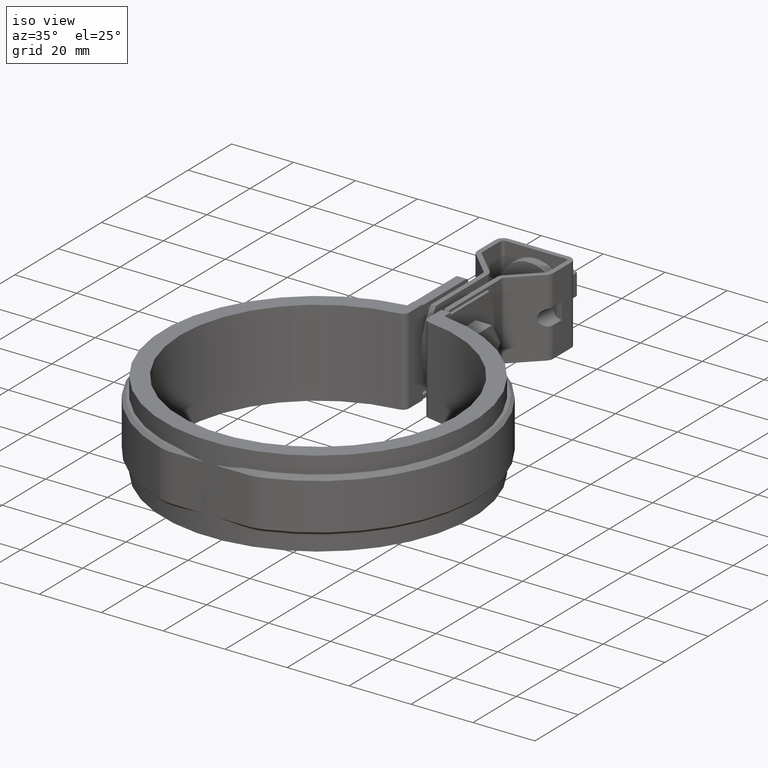
[diagram: clean part render]
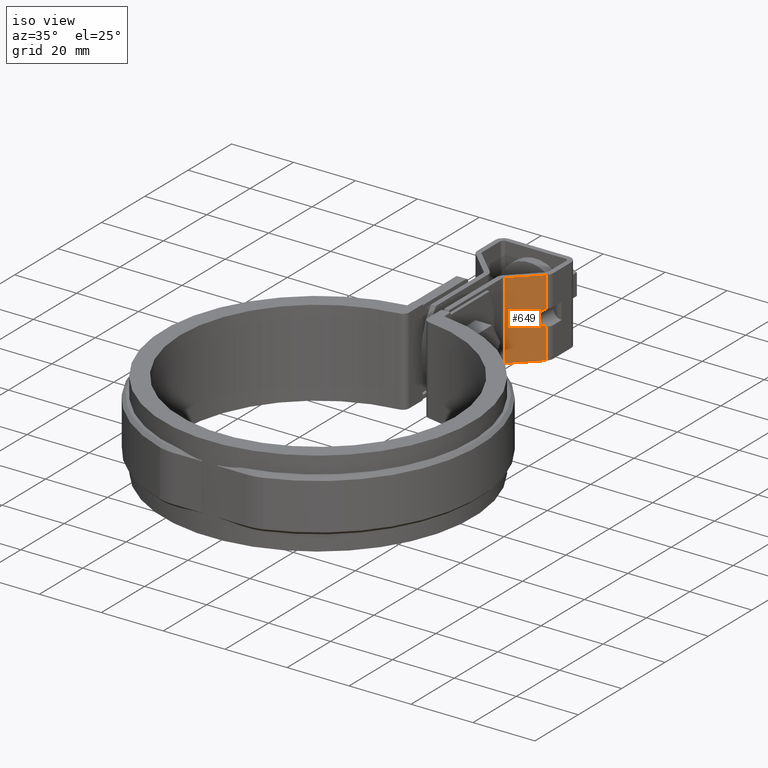
[diagram: same view with one face highlighted and labeled with its STEP entity id]
A machine part, iso view. The second image highlights one B-rep face of the part: STEP entity #649.
In plain terms, the highlighted planar face has unit normal (0.6983, -0.7158, 0).
Its self-contained STEP definition (entity closure, byte-faithful):
#649 = ADVANCED_FACE( '', ( #1218 ), #1219, .T. );
#1218 = FACE_OUTER_BOUND( '', #2558, .T. );
#1219 = PLANE( '', #2559 );
#2558 = EDGE_LOOP( '', ( #5941, #5942, #5943, #5944, #5945, #5946 ) );
#2559 = AXIS2_PLACEMENT_3D( '', #5947, #5948, #5949 );
#5941 = ORIENTED_EDGE( '', *, *, #7885, .T. );
#5942 = ORIENTED_EDGE( '', *, *, #7891, .F. );
#5943 = ORIENTED_EDGE( '', *, *, #7798, .T. );
#5944 = ORIENTED_EDGE( '', *, *, #7817, .F. );
#5945 = ORIENTED_EDGE( '', *, *, #7777, .F. );
#5946 = ORIENTED_EDGE( '', *, *, #7892, .F. );
#5947 = CARTESIAN_POINT( '', ( 3.90167616437032, 81.6516822966422, 12.4999999943156 ) );
#5948 = DIRECTION( '', ( 0.698323835531320, -0.715781964517705, 3.41092840061489E-011 ) );
#5949 = DIRECTION( '', ( -0.715781964517705, -0.698323835531320, 3.26011656361547E-011 ) );
#7777 = EDGE_CURVE( '', #9093, #9095, #9096, .T. );
#7798 = EDGE_CURVE( '', #9133, #9134, #9135, .T. );
#7817 = EDGE_CURVE( '', #9095, #9134, #9166, .T. );
#7885 = EDGE_CURVE( '', #9273, #9271, #9274, .T. );
#7891 = EDGE_CURVE( '', #9133, #9271, #9281, .T. );
#7892 = EDGE_CURVE( '', #9273, #9093, #9282, .T. );
#9093 = VERTEX_POINT( '', #13015 );
#9095 = VERTEX_POINT( '', #13017 );
#9096 = LINE( '', #13018, #13019 );
#9133 = VERTEX_POINT( '', #13067 );
#9134 = VERTEX_POINT( '', #13068 );
#9135 = ELLIPSE( '', #13069, 3.70224472166266, 2.64999999999997 );
#9166 = LINE( '', #13135, #13136 );
#9271 = VERTEX_POINT( '', #13309 );
#9273 = VERTEX_POINT( '', #13311 );
#9274 = LINE( '', #13312, #13313 );
#9281 = LINE( '', #13323, #13324 );
#9282 = LINE( '', #13325, #13326 );
#13015 = CARTESIAN_POINT( '', ( 3.30167616437099, 81.0663164700519, 12.4999999943429 ) );
#13017 = CARTESIAN_POINT( '', ( 11.4656419722716, 89.0311607923885, 12.4999999939711 ) );
#13018 = CARTESIAN_POINT( '', ( 3.90167616437032, 81.6516822966422, 12.4999999943156 ) );
#13019 = VECTOR( '', #14963, 1000.00000000000 );
#13067 = CARTESIAN_POINT( '', ( 11.4656419722789, 89.0311607916792, -2.53126105232718 ) );
#13068 = CARTESIAN_POINT( '', ( 11.4656419722765, 89.0311607919181, 2.53126104026929 ) );
#13069 = AXIS2_PLACEMENT_3D( '', #15002, #15003, #15004 );
#13135 = CARTESIAN_POINT( '', ( 11.4656419722716, 89.0311607923885, 12.4999999939711 ) );
#13136 = VECTOR( '', #15029, 1000.00000000000 );
#13309 = CARTESIAN_POINT( '', ( 11.4656419722837, 89.0311607912089, -12.5000000060289 ) );
#13311 = CARTESIAN_POINT( '', ( 3.30167616438309, 81.0663164688723, -12.5000000056571 ) );
#13312 = CARTESIAN_POINT( '', ( 3.90167616438242, 81.6516822954626, -12.5000000056844 ) );
#13313 = VECTOR( '', #15135, 1000.00000000000 );
#13323 = CARTESIAN_POINT( '', ( 11.4656419722716, 89.0311607923885, 12.4999999939711 ) );
#13324 = VECTOR( '', #15145, 1000.00000000000 );
#13325 = CARTESIAN_POINT( '', ( 3.30167616437099, 81.0663164700519, 12.4999999943429 ) );
#13326 = VECTOR( '', #15146, 1000.00000000000 );
#14963 = DIRECTION( '', ( 0.715781964517702, 0.698323835531324, -3.26011656361549E-011 ) );
#15002 = CARTESIAN_POINT( '', ( 12.2499999998975, 89.7963881004335, -6.06466266095396E-009 ) );
#15003 = DIRECTION( '', ( -0.698323835531319, 0.715781964517707, -3.41093191085967E-011 ) );
#15004 = DIRECTION( '', ( 0.715781964517707, 0.698323835531319, -3.26011296561440E-011 ) );
#15029 = DIRECTION( '', ( 4.83999649787072E-013, -4.71809813440451E-011, -1.00000000000000 ) );
#15135 = DIRECTION( '', ( 0.715781964517702, 0.698323835531324, -3.26011656361549E-011 ) );
#15145 = DIRECTION( '', ( 4.83999649787072E-013, -4.71809813440451E-011, -1.00000000000000 ) );
#15146 = DIRECTION( '', ( -4.84060880104763E-013, 4.71809216071525E-011, 1.00000000000000 ) );